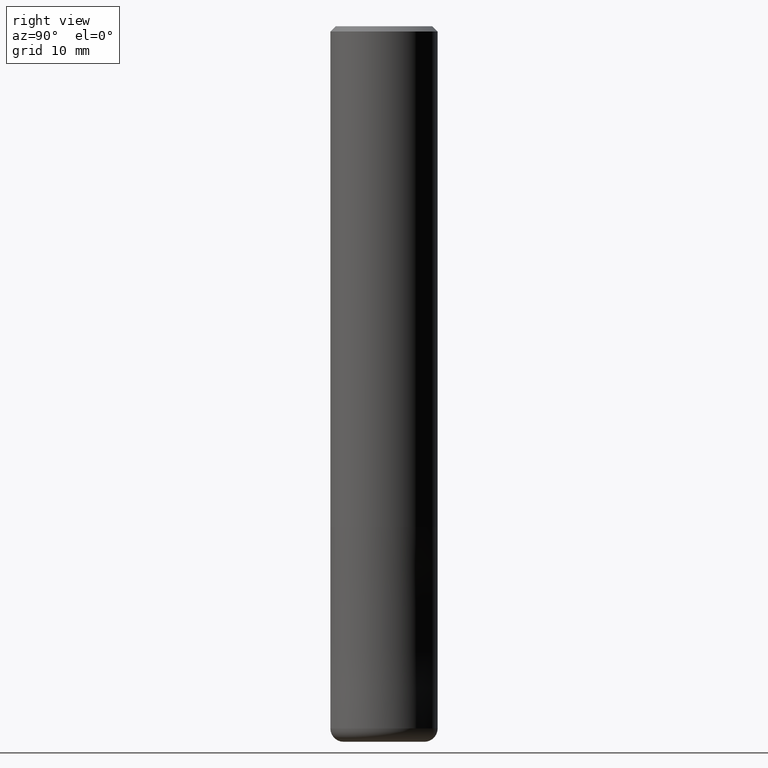
[diagram: clean part render]
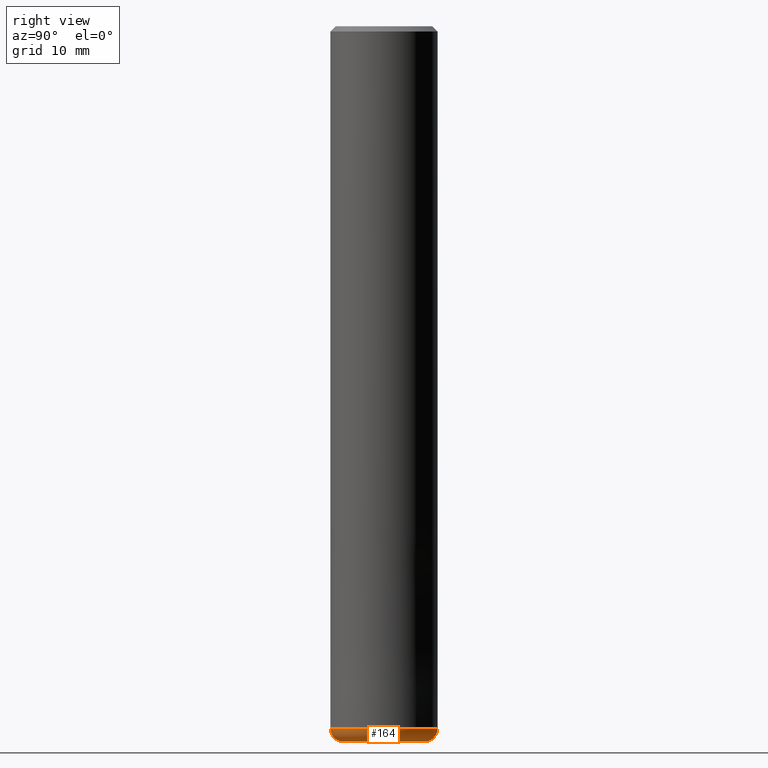
[diagram: same view with one face highlighted and labeled with its STEP entity id]
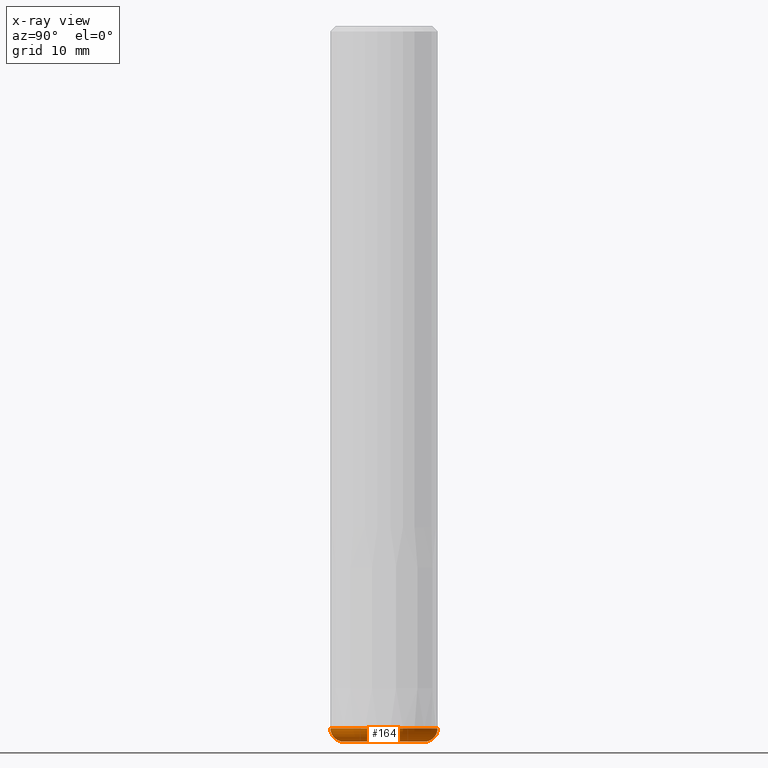
[diagram: x-ray of the same camera — body ghosted, the highlighted face saturated]
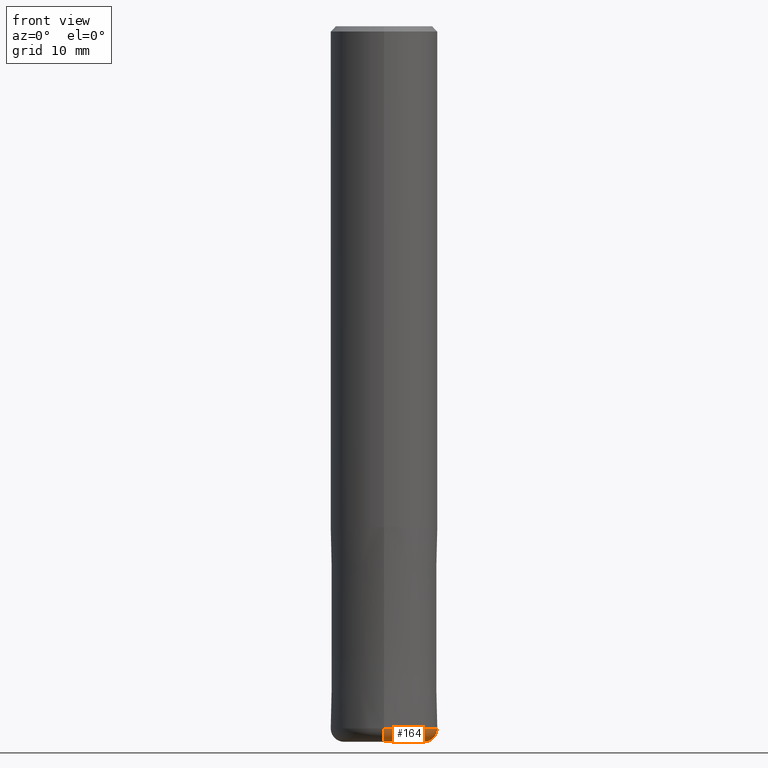
[diagram: same view with one face highlighted and labeled with its STEP entity id]
A machine part, right view. The second image highlights one B-rep face of the part: STEP entity #164.
The next image is the same camera in x-ray: the body ghosted, the highlighted face saturated — about 0% of this face is hidden behind the body in this view.
A second angle (front view) of the same face is appended — the face is thin or edge-on in the first view.
In plain terms, the highlighted toroidal blend (fillet) surface has major radius 4.5 mm and minor (blend) radius 1.5 mm.
Its self-contained STEP definition (entity closure, byte-faithful):
#128=EDGE_CURVE('',#188,#186,#291,.T.);
#148=EDGE_CURVE('',#186,#170,#312,.T.);
#164=ADVANCED_FACE('',(#328),#329,.T.);
#170=VERTEX_POINT('',#336);
#172=VERTEX_POINT('',#338);
#178=EDGE_CURVE('',#172,#188,#345,.T.);
#186=VERTEX_POINT('',#354);
#188=VERTEX_POINT('',#356);
#218=EDGE_CURVE('',#172,#170,#394,.T.);
#291=CIRCLE('',#475,6.0);
#312=CIRCLE('',#499,1.5);
#328=FACE_OUTER_BOUND('',#524,.T.);
#329=TOROIDAL_SURFACE('',#525,4.5,1.5);
#336=CARTESIAN_POINT('',(5.5107285922007E-016,-4.5,-80.0));
#338=CARTESIAN_POINT('',(0.0,4.5,-80.0));
#345=CIRCLE('',#546,1.5);
#354=CARTESIAN_POINT('',(7.34763812293426E-016,-6.0,-78.5));
#356=CARTESIAN_POINT('',(0.0,6.0,-78.5));
#394=CIRCLE('',#601,4.5);
#475=AXIS2_PLACEMENT_3D('',#676,#677,#678);
#499=AXIS2_PLACEMENT_3D('',#697,#698,#699);
#524=EDGE_LOOP('',(#713,#714,#715,#716));
#525=AXIS2_PLACEMENT_3D('',#717,#718,#719);
#546=AXIS2_PLACEMENT_3D('',#738,#739,#740);
#601=AXIS2_PLACEMENT_3D('',#802,#803,#804);
#676=CARTESIAN_POINT('',(0.0,0.0,-78.5));
#677=DIRECTION('',(0.0,0.0,-1.0));
#678=DIRECTION('',(0.0,1.0,0.0));
#697=CARTESIAN_POINT('',(5.5107285922007E-016,-4.5,-78.5));
#698=DIRECTION('',(1.0,1.22460635382238E-016,0.0));
#699=DIRECTION('',(1.22460635382238E-016,-1.0,-0.0));
#713=ORIENTED_EDGE('',*,*,#148,.T.);
#714=ORIENTED_EDGE('',*,*,#218,.F.);
#715=ORIENTED_EDGE('',*,*,#178,.T.);
#716=ORIENTED_EDGE('',*,*,#128,.T.);
#717=CARTESIAN_POINT('',(0.0,0.0,-78.5));
#718=DIRECTION('',(0.0,0.0,-1.0));
#719=DIRECTION('',(0.0,-1.0,0.0));
#738=CARTESIAN_POINT('',(-5.5107285922007E-016,4.5,-78.5));
#739=DIRECTION('',(1.0,1.22460635382238E-016,0.0));
#740=DIRECTION('',(-1.22460635382238E-016,1.0,0.0));
#802=CARTESIAN_POINT('',(0.0,0.0,-80.0));
#803=DIRECTION('',(0.0,0.0,-1.0));
#804=DIRECTION('',(0.0,1.0,0.0));